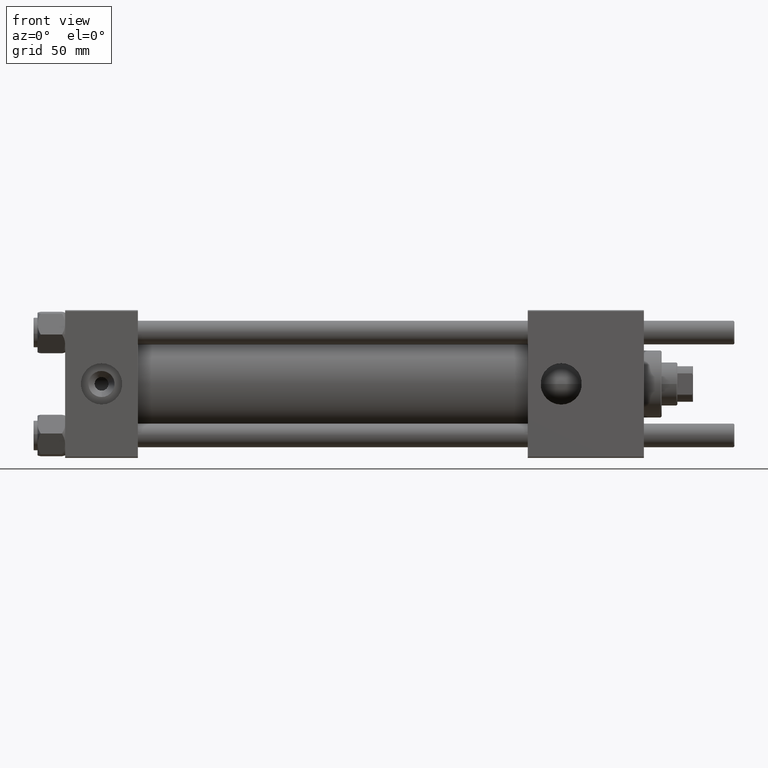
[diagram: clean part render]
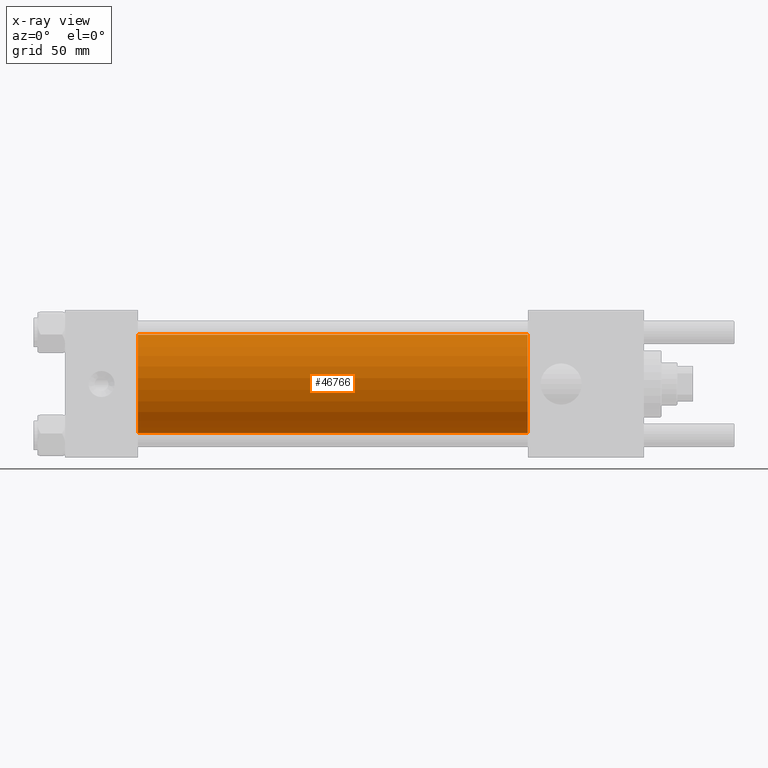
[diagram: x-ray — body ghosted, one internal face saturated and labeled with its STEP entity id]
A machine part, front view, then the same camera in x-ray: the body is ghosted and one INTERNAL B-rep face — a face not visible from any outside direction — is saturated and labeled: STEP entity #46766.
In plain terms, the highlighted cylindrical surface (partial cylindrical patch) has radius 25 mm, axis along (-1, -0, -0).
Its self-contained STEP definition (entity closure, byte-faithful):
#1017 = CARTESIAN_POINT ( 'NONE',  ( 235.0000000000000284, -2.602085213965210642E-15, 0.000000000000000000 ) ) ;
#1306 = EDGE_LOOP ( 'NONE', ( #13101, #4145, #32497, #54075 ) ) ;
#1456 = LINE ( 'NONE', #14086, #31799 ) ;
#2336 = DIRECTION ( 'NONE',  ( 0.000000000000000000, 0.000000000000000000, -1.000000000000000000 ) ) ;
#2899 = CARTESIAN_POINT ( 'NONE',  ( 37.00000000000000000, -2.602085213965210642E-15, 0.000000000000000000 ) ) ;
#3627 = CIRCLE ( 'NONE', #13699, 25.00000000000000000 ) ;
#4145 = ORIENTED_EDGE ( 'NONE', *, *, #21595, .T. ) ;
#4912 = CARTESIAN_POINT ( 'NONE',  ( 37.00000000000000000, 4.595317839031724996E-16, -25.00000000000000000 ) ) ;
#6009 = VECTOR ( 'NONE', #41388, 1000.000000000000000 ) ;
#7186 = LINE ( 'NONE', #23834, #6009 ) ;
#8781 = DIRECTION ( 'NONE',  ( 1.000000000000000000, 0.000000000000000000, 0.000000000000000000 ) ) ;
#10402 = FACE_OUTER_BOUND ( 'NONE', #1306, .T. ) ;
#10955 = DIRECTION ( 'NONE',  ( 1.000000000000000000, 0.000000000000000000, 0.000000000000000000 ) ) ;
#13101 = ORIENTED_EDGE ( 'NONE', *, *, #44129, .T. ) ;
#13699 = AXIS2_PLACEMENT_3D ( 'NONE', #1017, #8781, #43804 ) ;
#13952 = VERTEX_POINT ( 'NONE', #34722 ) ;
#14086 = CARTESIAN_POINT ( 'NONE',  ( 235.0000000000000284, -2.602085213965210642E-15, 25.00000000000000000 ) ) ;
#20121 = CARTESIAN_POINT ( 'NONE',  ( 235.0000000000000284, -2.602085213965210642E-15, 0.000000000000000000 ) ) ;
#21079 = VERTEX_POINT ( 'NONE', #24718 ) ;
#21595 = EDGE_CURVE ( 'NONE', #26457, #54758, #7186, .T. ) ;
#23834 = CARTESIAN_POINT ( 'NONE',  ( 235.0000000000000284, 4.595317839031724996E-16, -25.00000000000000000 ) ) ;
#24718 = CARTESIAN_POINT ( 'NONE',  ( 37.00000000000000000, -2.602085213965210642E-15, 25.00000000000000000 ) ) ;
#26457 = VERTEX_POINT ( 'NONE', #40929 ) ;
#27275 = DIRECTION ( 'NONE',  ( -1.000000000000000000, -0.000000000000000000, -0.000000000000000000 ) ) ;
#27884 = DIRECTION ( 'NONE',  ( 0.000000000000000000, 0.000000000000000000, 1.000000000000000000 ) ) ;
#31799 = VECTOR ( 'NONE', #27275, 1000.000000000000000 ) ;
#32497 = ORIENTED_EDGE ( 'NONE', *, *, #36359, .F. ) ;
#33052 = CYLINDRICAL_SURFACE ( 'NONE', #52297, 25.00000000000000000 ) ;
#34722 = CARTESIAN_POINT ( 'NONE',  ( 235.0000000000000284, -2.602085213965210642E-15, 25.00000000000000000 ) ) ;
#36359 = EDGE_CURVE ( 'NONE', #21079, #54758, #48314, .T. ) ;
#37448 = EDGE_CURVE ( 'NONE', #13952, #21079, #1456, .T. ) ;
#37659 = DIRECTION ( 'NONE',  ( -1.000000000000000000, -0.000000000000000000, -0.000000000000000000 ) ) ;
#40929 = CARTESIAN_POINT ( 'NONE',  ( 235.0000000000000284, 4.595317839031724996E-16, -25.00000000000000000 ) ) ;
#41388 = DIRECTION ( 'NONE',  ( -1.000000000000000000, -0.000000000000000000, -0.000000000000000000 ) ) ;
#43804 = DIRECTION ( 'NONE',  ( 0.000000000000000000, 0.000000000000000000, -1.000000000000000000 ) ) ;
#44129 = EDGE_CURVE ( 'NONE', #13952, #26457, #3627, .T. ) ;
#46766 = ADVANCED_FACE ( 'NONE', ( #10402 ), #33052, .F. ) ;
#48314 = CIRCLE ( 'NONE', #56565, 25.00000000000000000 ) ;
#52297 = AXIS2_PLACEMENT_3D ( 'NONE', #20121, #37659, #27884 ) ;
#54075 = ORIENTED_EDGE ( 'NONE', *, *, #37448, .F. ) ;
#54758 = VERTEX_POINT ( 'NONE', #4912 ) ;
#56565 = AXIS2_PLACEMENT_3D ( 'NONE', #2899, #10955, #2336 ) ;